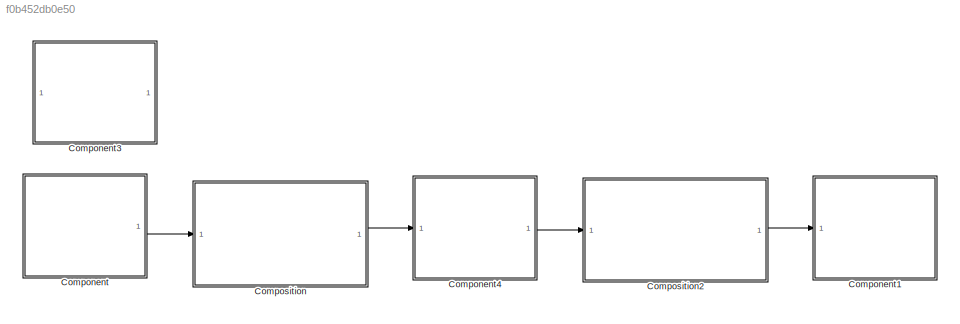
MODEL slx_f0b452db0e50
KIND model
CONFIG AbsTol = auto
CONFIG EnableMultiTasking = on
CONFIG FixedStep = auto
CONFIG MaxStep = auto
CONFIG MinStep = auto
CONFIG RelTol = 1e-3
CONFIG SampleTimeConstraint = Unconstrained
CONFIG Solver = FixedStepDiscrete
CONFIG SolverName = FixedStepDiscrete
CONFIG StartTime = 0.0
CONFIG StopTime = 10.0
BLOCK [ModelReference] Component
  ModelNameDialog = INPUT_autosar
  ModelReferenceVersion = 1.5
  PortSchema = {"entries":[{"content":{"headerSize":38,"margin":15,"minimumSpacing":25,"sides":[{"content":{"connectorIds":[]},"type":"ConnectorPlacement.EquallySpacedRectSide","uuid":"3f144864-9d7e-4ef3-b53e-0b02a09b3f7c"},{"content":{"connectorIds":["Out1"],"side":"RIGHT"},"type":"ConnectorPlacement.EquallySpacedRectSide","uuid":"da086210-0760-4d07-8ae8-b6c94049e6d3"},{"content":{"connectorIds":[],"side":"TOP"...<+285ch>
  Ports = [0, 1]
  ScheduleRates = on
  ScheduleRatesWith = Schedule Editor
BLOCK [ModelReference] Component1
  ModelNameDialog = OUT_auto
  ModelReferenceVersion = 1.2
  PortSchema = {"entries":[{"content":{"headerSize":38,"margin":15,"minimumSpacing":25,"sides":[{"content":{"connectorIds":["In1"]},"type":"ConnectorPlacement.EquallySpacedRectSide","uuid":"972b8812-4f66-48e1-a50f-856a8ff4edf4"},{"content":{"connectorIds":[],"side":"RIGHT"},"type":"ConnectorPlacement.EquallySpacedRectSide","uuid":"e79fdc99-55e6-49e3-9797-bdbb7463bac3"},{"content":{"connectorIds":[],"side":"TOP"}...<+284ch>
  Ports = [1]
  ScheduleRates = on
  ScheduleRatesWith = Schedule Editor
BLOCK [ModelReference] Component3
  ModelNameDialog = VCU_Config
  ModelReferenceVersion = 1.5
  PortSchema = {"entries":[{"content":{"headerSize":38,"margin":15,"minimumSpacing":25,"sides":[{"content":{"connectorIds":[]},"type":"ConnectorPlacement.EquallySpacedRectSide","uuid":"f43777d3-b52c-42ba-a281-f330c306dc52"},{"content":{"connectorIds":[],"side":"RIGHT"},"type":"ConnectorPlacement.EquallySpacedRectSide","uuid":"3f6bc4af-72b0-4e1b-866b-b8109e033668"},{"content":{"connectorIds":[],"side":"TOP"},"typ...<+279ch>
  Ports = []
  ScheduleRates = on
  ScheduleRatesWith = Schedule Editor
BLOCK [ModelReference] Component4
  ModelNameDialog = Drive_Ready_autosar
  ModelReferenceVersion = 1.4
  PortSchema = {"entries":[{"content":{"headerSize":38,"margin":15,"minimumSpacing":25,"sides":[{"content":{"connectorIds":["In1"]},"type":"ConnectorPlacement.EquallySpacedRectSide","uuid":"49d7a716-8d3c-407e-99f4-b11206eca66e"},{"content":{"connectorIds":["Out1"],"side":"RIGHT"},"type":"ConnectorPlacement.EquallySpacedRectSide","uuid":"4ef8d5bb-314e-40d0-9324-56f54f708f96"},{"content":{"connectorIds":[],"side":...<+290ch>
  Ports = [1, 1]
  ScheduleRates = on
  ScheduleRatesWith = Schedule Editor
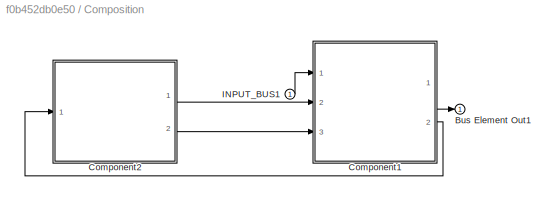
BLOCK [SubSystem] Composition
  PortSchema = {"entries":[{"content":{"headerSize":26,"margin":15,"minimumSpacing":25,"sides":[{"content":{"connectorIds":["In1"]},"type":"ConnectorPlacement.EquallySpacedRectSide","uuid":"49d7a716-8d3c-407e-99f4-b11206eca66e"},{"content":{"connectorIds":["Out1"],"side":"RIGHT"},"type":"ConnectorPlacement.EquallySpacedRectSide","uuid":"4ef8d5bb-314e-40d0-9324-56f54f708f96"},{"content":{"connectorIds":[],"side":...<+290ch>
  Ports = [1, 1]
  RequestExecContextInheritance = off
BLOCK [Outport] Composition/Bus Element Out1
  IconDisplay = Port number
BLOCK [ModelReference] Composition/Component1
  ModelNameDialog = INPUT_processing_autosar
  ModelReferenceVersion = 1.10
  PortSchema = {"entries":[{"content":{"headerSize":38,"margin":15,"minimumSpacing":25,"sides":[{"content":{"connectorIds":["In1","In2","In3"]},"type":"ConnectorPlacement.EquallySpacedRectSide","uuid":"3f144864-9d7e-4ef3-b53e-0b02a09b3f7c"},{"content":{"connectorIds":["Out1","Out2"],"side":"RIGHT"},"type":"ConnectorPlacement.EquallySpacedRectSide","uuid":"da086210-0760-4d07-8ae8-b6c94049e6d3"},{"content":{"conne...<+309ch>
  Ports = [3, 2]
  ScheduleRates = on
  ScheduleRatesWith = Schedule Editor
BLOCK [ModelReference] Composition/Component2
  ModelNameDialog = VehSpdEstiModl_autosar
  ModelReferenceVersion = 1.5
  PortSchema = {"entries":[{"content":{"headerSize":38,"margin":15,"minimumSpacing":25,"sides":[{"content":{"connectorIds":["In1"]},"type":"ConnectorPlacement.EquallySpacedRectSide","uuid":"3f144864-9d7e-4ef3-b53e-0b02a09b3f7c"},{"content":{"connectorIds":["Out1","Out2"],"side":"RIGHT"},"type":"ConnectorPlacement.EquallySpacedRectSide","uuid":"da086210-0760-4d07-8ae8-b6c94049e6d3"},{"content":{"connectorIds":[],...<+297ch>
  Ports = [1, 2]
  ScheduleRates = on
  ScheduleRatesWith = Schedule Editor
BLOCK [Inport] Composition/INPUT_BUS1
  IconDisplay = Port number
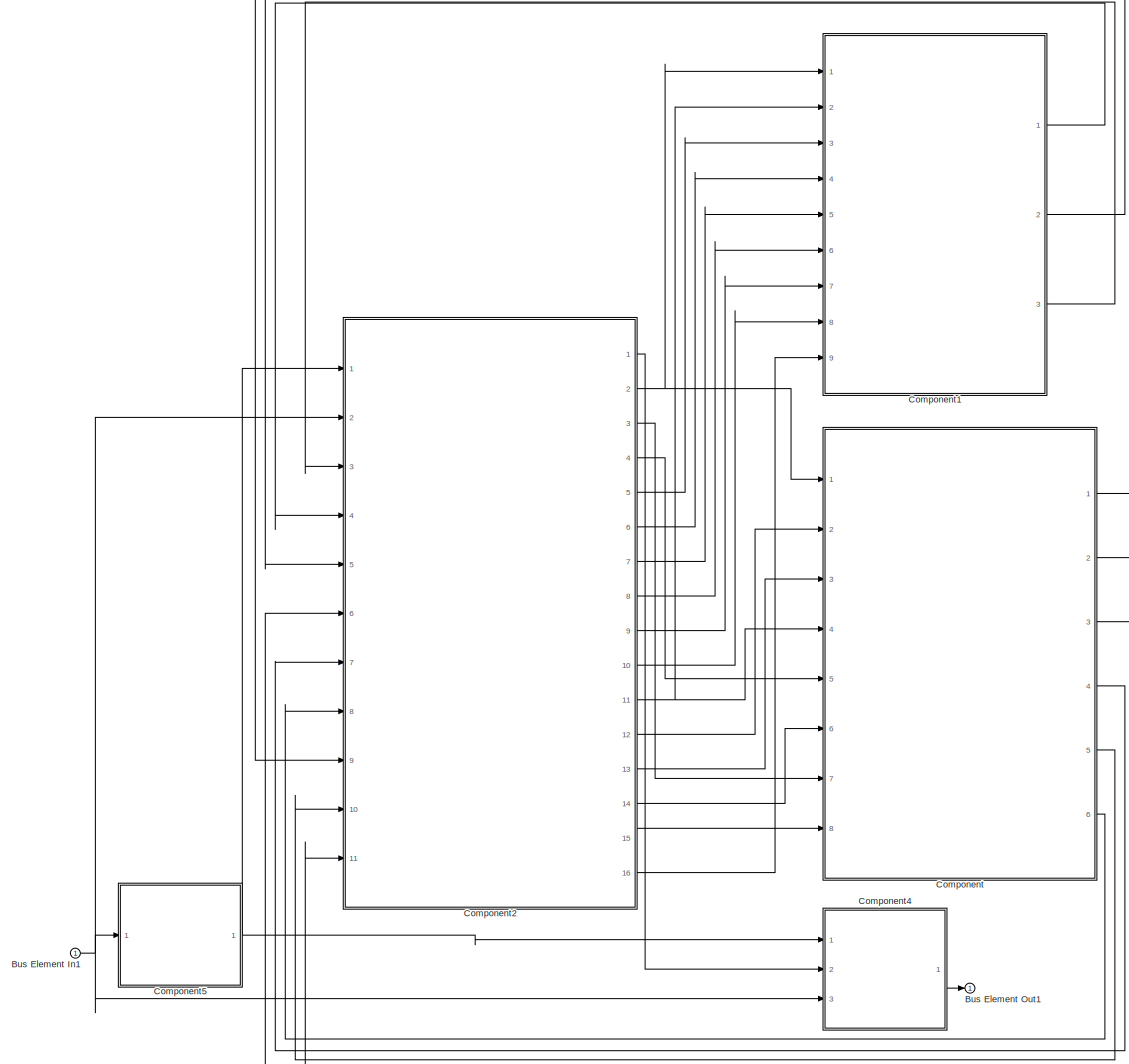
[diagram: Composition2 - part 1/1, most of the canvas]
BLOCK [SubSystem] Composition2
  PortSchema = {"entries":[{"content":{"headerSize":26,"margin":15,"minimumSpacing":25,"sides":[{"content":{"connectorIds":["In1"]},"type":"ConnectorPlacement.EquallySpacedRectSide","uuid":"49d7a716-8d3c-407e-99f4-b11206eca66e"},{"content":{"connectorIds":["Out1"],"side":"RIGHT"},"type":"ConnectorPlacement.EquallySpacedRectSide","uuid":"4ef8d5bb-314e-40d0-9324-56f54f708f96"},{"content":{"connectorIds":[],"side":...<+290ch>
  Ports = [1, 1]
  RequestExecContextInheritance = off
BLOCK [Inport] Composition2/Bus Element In1
  IconDisplay = Port number
BLOCK [Outport] Composition2/Bus Element Out1
  IconDisplay = Port number
BLOCK [ModelReference] Composition2/Component
  ModelNameDialog = TCS_autosar
  ModelReferenceVersion = 1.7
  PortSchema = {"entries":[{"content":{"headerSize":38,"margin":15,"minimumSpacing":25,"sides":[{"content":{"connectorIds":["In1","In2","In3","In4","In5","In6","In7","In8"]},"type":"ConnectorPlacement.EquallySpacedRectSide","uuid":"49d7a716-8d3c-407e-99f4-b11206eca66e"},{"content":{"connectorIds":["Out1","Out2","Out3","Out4","Out5","Out6"],"side":"RIGHT"},"type":"ConnectorPlacement.EquallySpacedRectSide","uuid":...<+367ch>
  Ports = [8, 6]
  ScheduleRates = on
  ScheduleRatesWith = Schedule Editor
BLOCK [ModelReference] Composition2/Component1
  ModelNameDialog = DYC_autosar
  ModelReferenceVersion = 1.3
  PortSchema = {"entries":[{"content":{"headerSize":38,"margin":15,"minimumSpacing":25,"sides":[{"content":{"connectorIds":["In1","In2","In3","In4","In5","In6","In7","In8","In9"]},"type":"ConnectorPlacement.EquallySpacedRectSide","uuid":"49d7a716-8d3c-407e-99f4-b11206eca66e"},{"content":{"connectorIds":["Out1","Out2","Out3"],"side":"RIGHT"},"type":"ConnectorPlacement.EquallySpacedRectSide","uuid":"4ef8d5bb-314e-...<+352ch>
  Ports = [9, 3]
  ScheduleRates = on
  ScheduleRatesWith = Schedule Editor
BLOCK [ModelReference] Composition2/Component2
  ModelNameDialog = TrqLimit_autosar
  ModelReferenceVersion = 1.8
  PortSchema = {"entries":[{"content":{"headerSize":38,"margin":15,"minimumSpacing":25,"sides":[{"content":{"connectorIds":["In1","In2","In3","In4","In5","In6","In7","In8","In9","In10","In11"]},"type":"ConnectorPlacement.EquallySpacedRectSide","uuid":"49d7a716-8d3c-407e-99f4-b11206eca66e"},{"content":{"connectorIds":["Out1","Out2","Out3","Out4","Out5","Out6","Out7","Out8","Out9","Out10","Out11","Out12","Out13","...<+464ch>
  Ports = [11, 16]
  ScheduleRates = on
  ScheduleRatesWith = Schedule Editor
BLOCK [ModelReference] Composition2/Component4
  ModelNameDialog = BUS_autosar
  ModelReferenceVersion = 1.2
  PortSchema = {"entries":[{"content":{"headerSize":38,"margin":15,"minimumSpacing":25,"sides":[{"content":{"connectorIds":["In1","In2","In3"]},"type":"ConnectorPlacement.EquallySpacedRectSide","uuid":"972b8812-4f66-48e1-a50f-856a8ff4edf4"},{"content":{"connectorIds":["Out1"],"side":"RIGHT"},"type":"ConnectorPlacement.EquallySpacedRectSide","uuid":"e79fdc99-55e6-49e3-9797-bdbb7463bac3"},{"content":{"connectorIds...<+302ch>
  Ports = [3, 1]
  ScheduleRates = on
  ScheduleRatesWith = Schedule Editor
BLOCK [ModelReference] Composition2/Component5
  ModelNameDialog = PwrTrainTempPrtct_autosar
  ModelReferenceVersion = 1.4
  PortSchema = {"entries":[{"content":{"headerSize":38,"margin":15,"minimumSpacing":25,"sides":[{"content":{"connectorIds":["In1"]},"type":"ConnectorPlacement.EquallySpacedRectSide","uuid":"49d7a716-8d3c-407e-99f4-b11206eca66e"},{"content":{"connectorIds":["Out1"],"side":"RIGHT"},"type":"ConnectorPlacement.EquallySpacedRectSide","uuid":"4ef8d5bb-314e-40d0-9324-56f54f708f96"},{"content":{"connectorIds":[],"side":...<+290ch>
  Ports = [1, 1]
  ScheduleRates = on
  ScheduleRatesWith = Schedule Editor
LINE Component4:1 -> Composition2:1
LINE Component:1 -> Composition:1
LINE Composition/Component1:1 -> Composition/Bus Element Out1:1
LINE Composition/Component1:2 -> Composition/Component2:1
LINE Composition/Component2:1 -> Composition/Component1:2
LINE Composition/Component2:2 -> Composition/Component1:3
LINE Composition/INPUT_BUS1:1 -> Composition/Component1:1
NET Composition2/Bus Element In1:1 -> Composition2/Component2:2, Composition2/Component4:3, Composition2/Component5:1
LINE Composition2/Component1:1 -> Composition2/Component2:4
LINE Composition2/Component1:2 -> Composition2/Component2:5
LINE Composition2/Component1:3 -> Composition2/Component2:3
LINE Composition2/Component2:1 -> Composition2/Component4:2
LINE Composition2/Component2:10 -> Composition2/Component1:8
NET Composition2/Component2:11 -> Composition2/Component1:2, Composition2/Component:4
LINE Composition2/Component2:12 -> Composition2/Component:2
LINE Composition2/Component2:13 -> Composition2/Component:3
LINE Composition2/Component2:14 -> Composition2/Component:6
LINE Composition2/Component2:15 -> Composition2/Component:8
LINE Composition2/Component2:16 -> Composition2/Component1:9
NET Composition2/Component2:2 -> Composition2/Component1:1, Composition2/Component:1
LINE Composition2/Component2:3 -> Composition2/Component:7
LINE Composition2/Component2:4 -> Composition2/Component:5
LINE Composition2/Component2:5 -> Composition2/Component1:3
LINE Composition2/Component2:6 -> Composition2/Component1:4
LINE Composition2/Component2:7 -> Composition2/Component1:5
LINE Composition2/Component2:8 -> Composition2/Component1:6
LINE Composition2/Component2:9 -> Composition2/Component1:7
LINE Composition2/Component4:1 -> Composition2/Bus Element Out1:1
NET Composition2/Component5:1 -> Composition2/Component2:1, Composition2/Component4:1
LINE Composition2/Component:1 -> Composition2/Component2:9
LINE Composition2/Component:2 -> Composition2/Component2:6
LINE Composition2/Component:3 -> Composition2/Component2:11
LINE Composition2/Component:4 -> Composition2/Component2:7
LINE Composition2/Component:5 -> Composition2/Component2:10
LINE Composition2/Component:6 -> Composition2/Component2:8
LINE Composition2:1 -> Component1:1
LINE Composition:1 -> Component4:1
note: NET lines group one-source signal fan-out (src -> all destinations, sorted); 1:1 wires keep LINE
